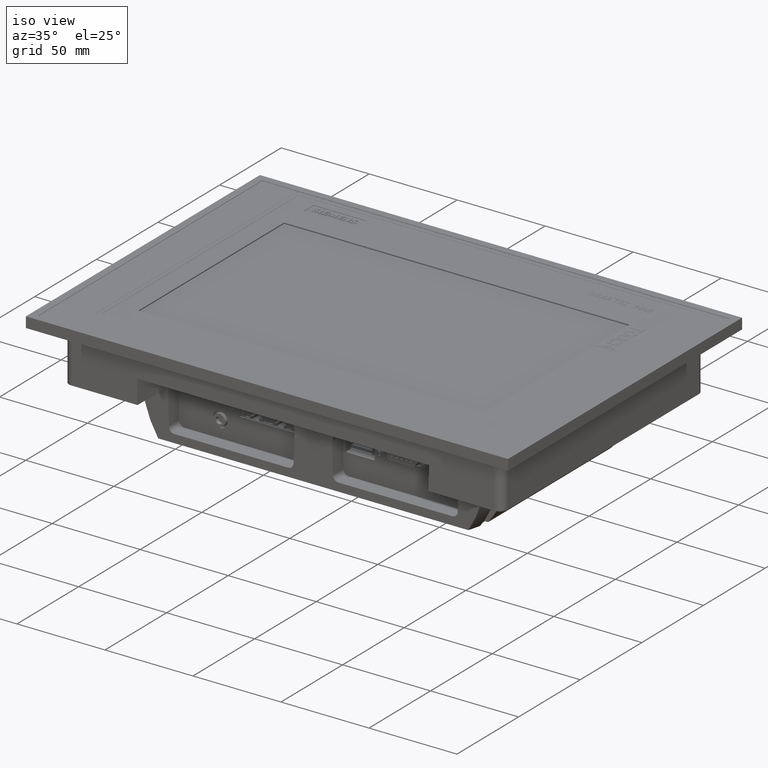
[diagram: clean part render]
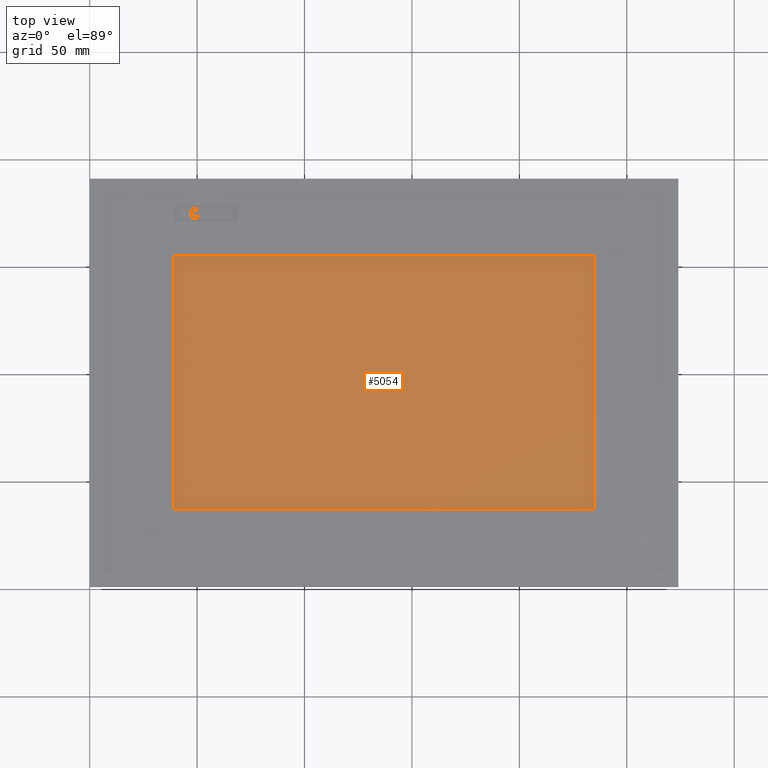
[diagram: tour spotlight — one face highlighted and labeled with its STEP entity id]
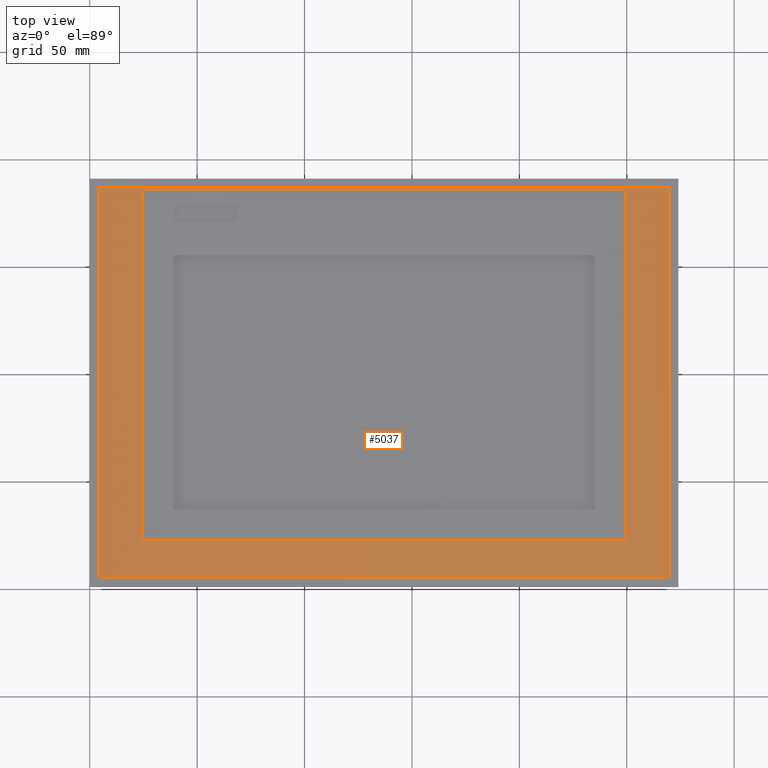
[diagram: tour spotlight — one face highlighted and labeled with its STEP entity id]
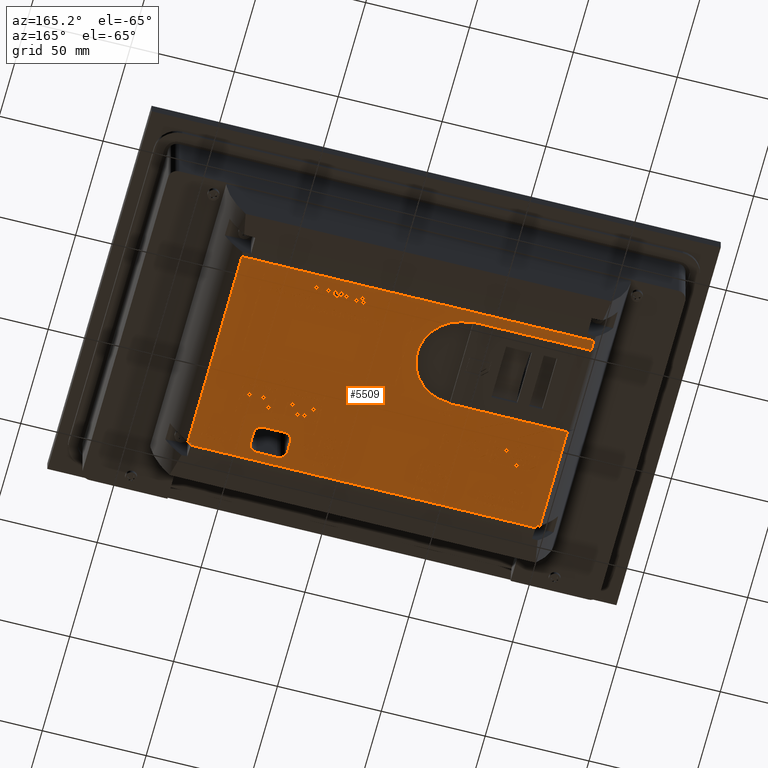
[diagram: tour spotlight — one face highlighted and labeled with its STEP entity id]
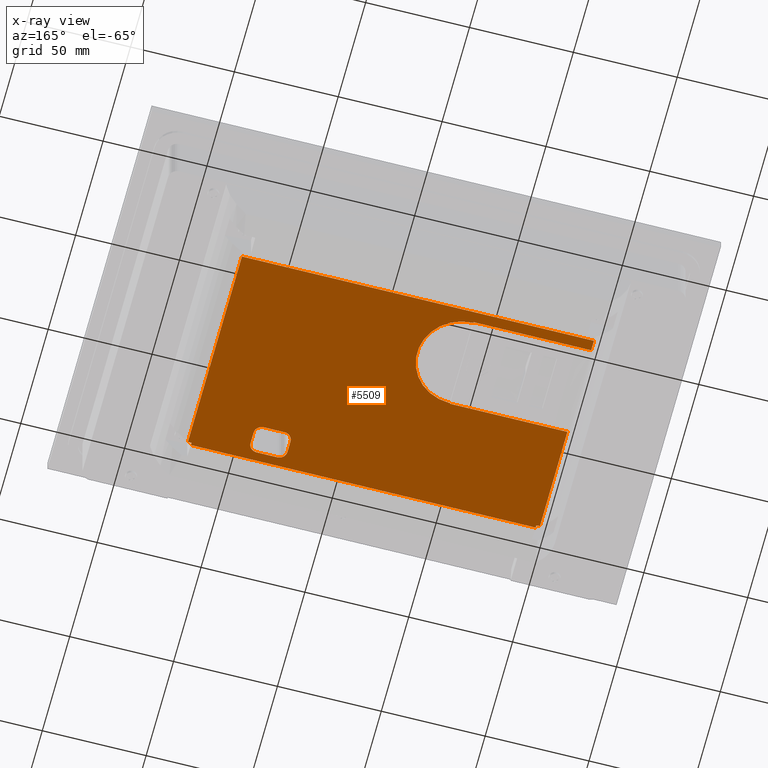
[diagram: x-ray of the same camera — body ghosted, this tour face saturated]
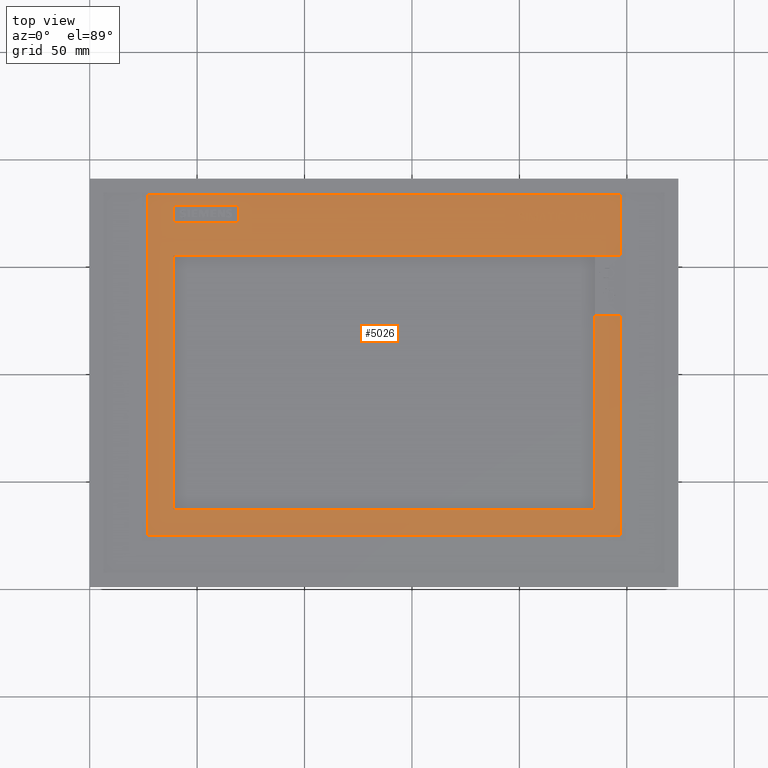
[diagram: tour spotlight — one face highlighted and labeled with its STEP entity id]
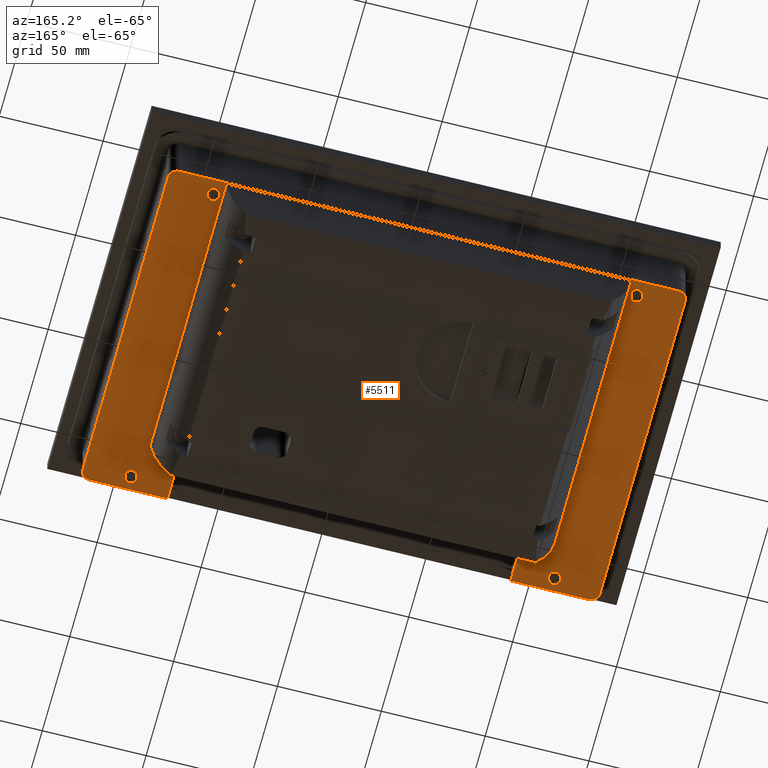
[diagram: tour spotlight — one face highlighted and labeled with its STEP entity id]
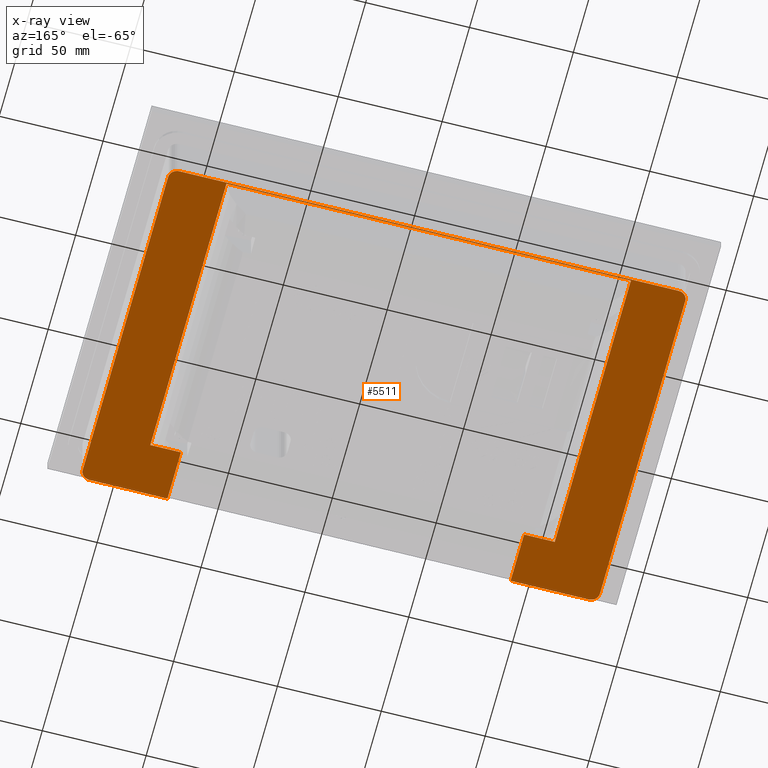
[diagram: x-ray of the same camera — body ghosted, this tour face saturated]
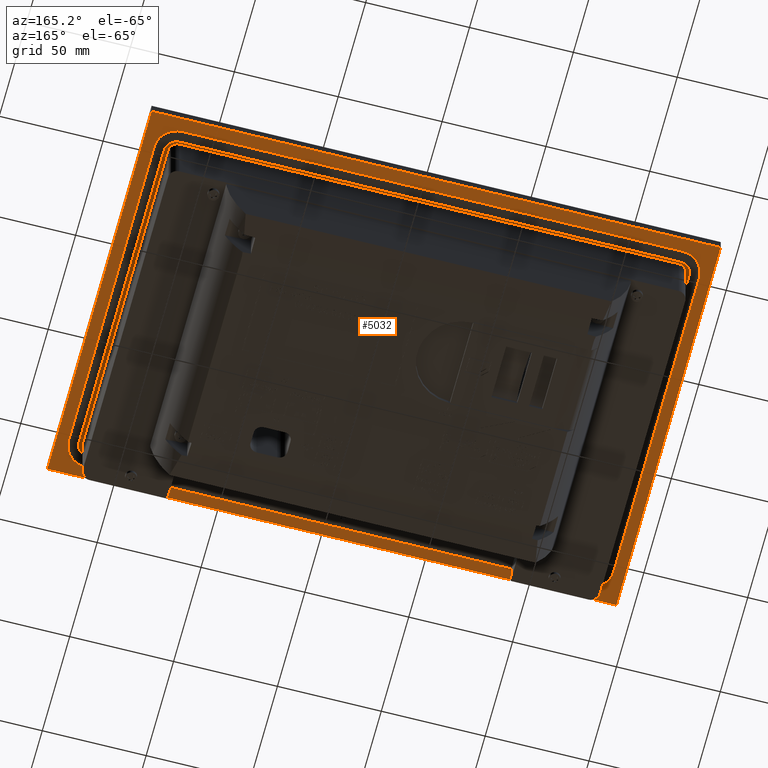
[diagram: tour spotlight — one face highlighted and labeled with its STEP entity id]
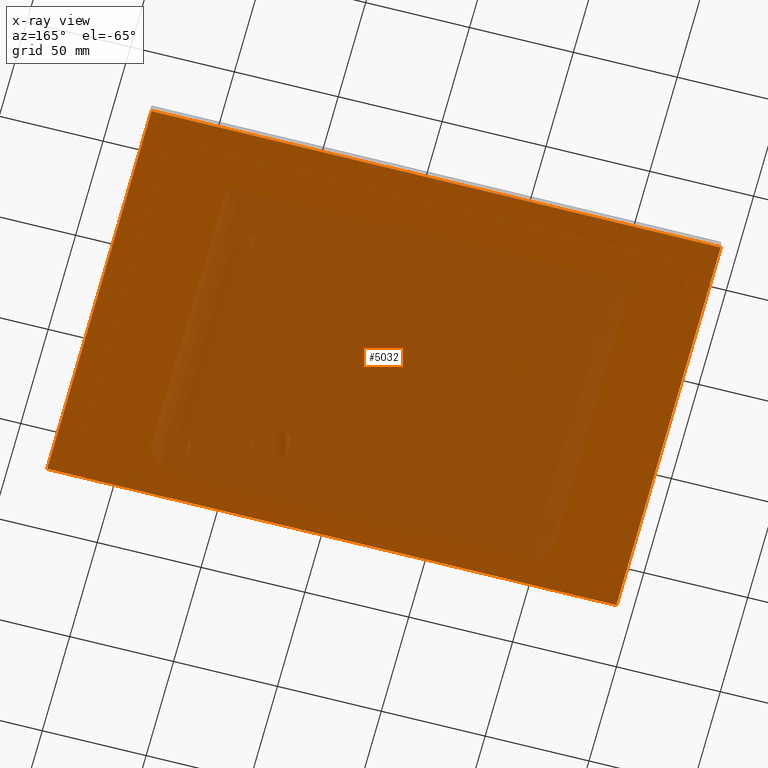
[diagram: x-ray of the same camera — body ghosted, this tour face saturated]
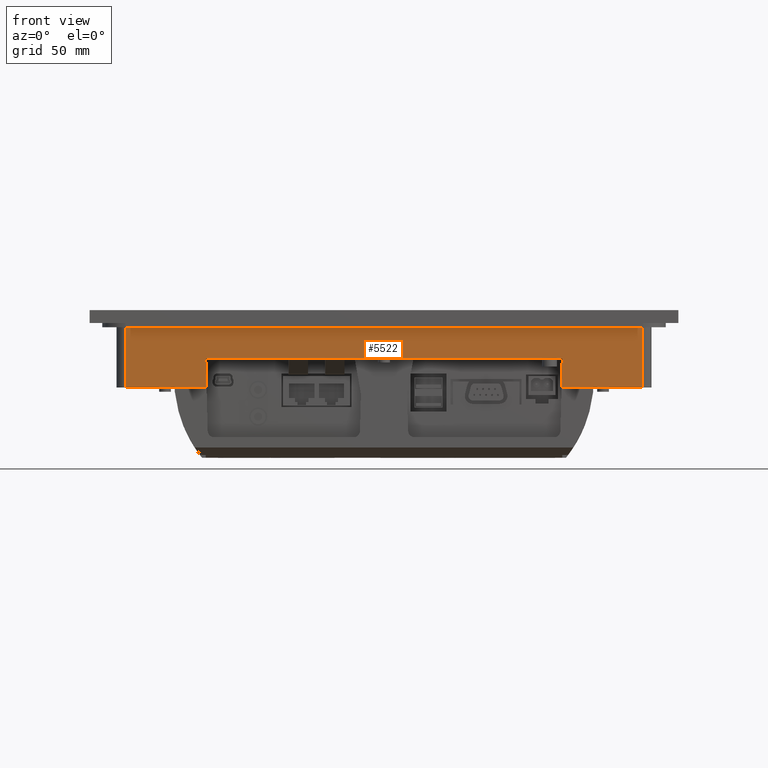
[diagram: tour spotlight — one face highlighted and labeled with its STEP entity id]
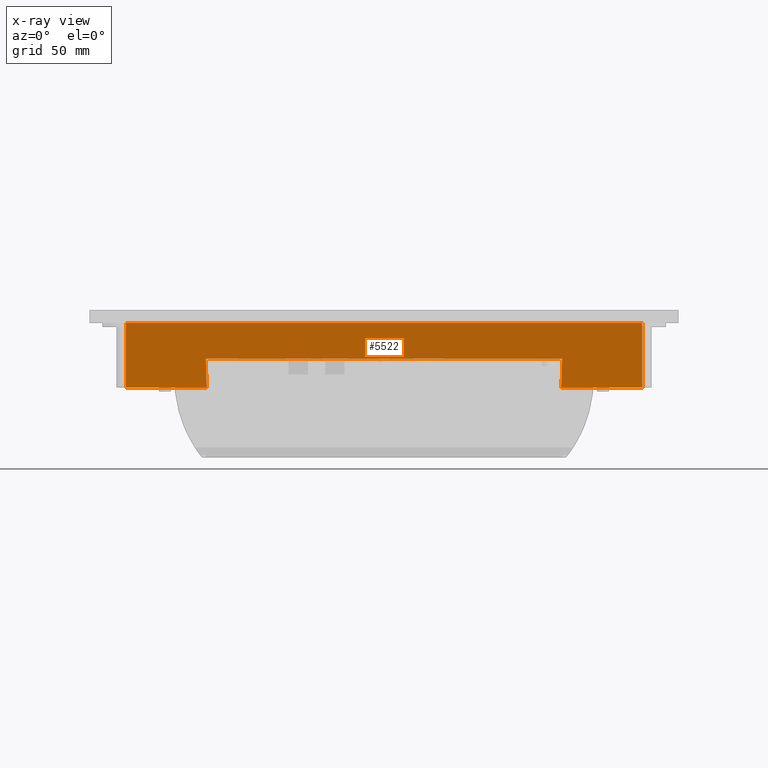
[diagram: x-ray of the same camera — body ghosted, this tour face saturated]
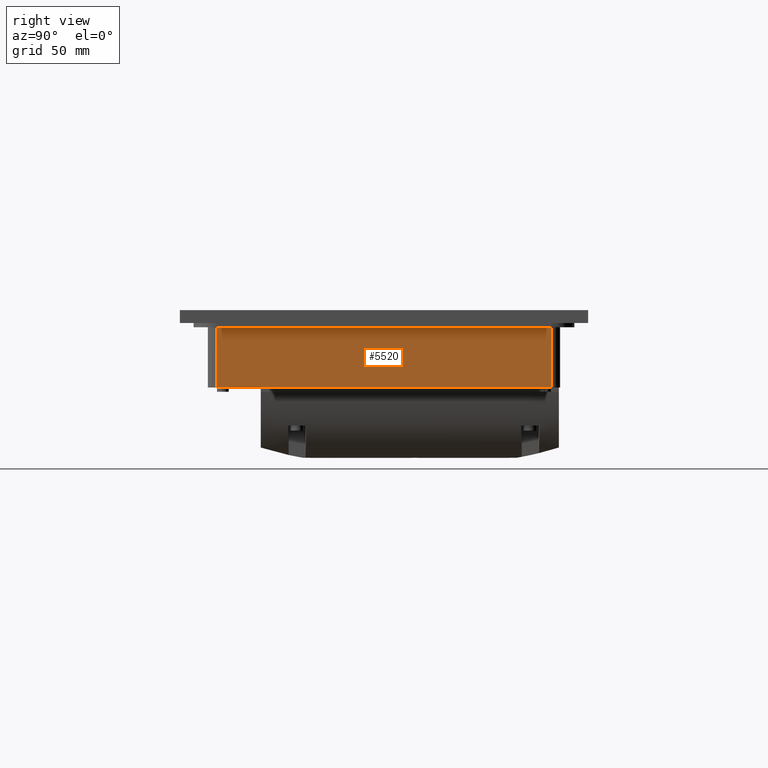
[diagram: tour spotlight — one face highlighted and labeled with its STEP entity id]
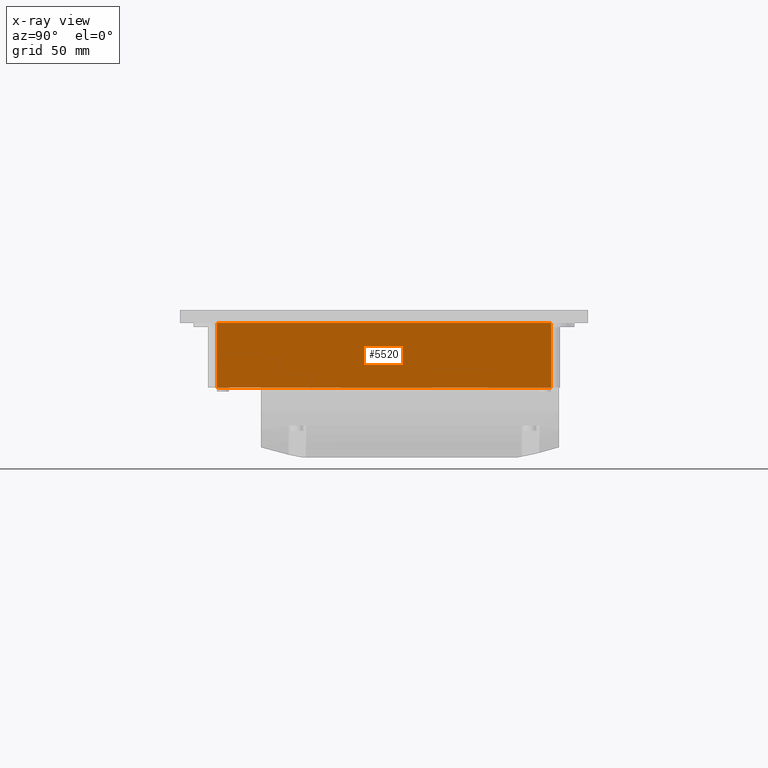
[diagram: x-ray of the same camera — body ghosted, this tour face saturated]
A machine part: a face-by-face anatomy tour. The part has 2801 B-rep faces; the first image is the clean iso view, then the 8 largest visible faces are spotlighted one at a time (largest first), each with its STEP entity span.

Face 1 — top view, entity #5054. In plain terms, the highlighted planar face has unit normal (0, -0, 1).
Definition (entity closure, byte-faithful):
#5054=ADVANCED_FACE('',(#10153),#7822,.T.);
#7822=PLANE('',#51615);
#10153=FACE_OUTER_BOUND('',#12736,.T.);
#12736=EDGE_LOOP('',(#16324,#16325,#16326,#16327));
#16324=ORIENTED_EDGE('',*,*,#33702,.T.);
#16325=ORIENTED_EDGE('',*,*,#33704,.T.);
#16326=ORIENTED_EDGE('',*,*,#33697,.T.);
#16327=ORIENTED_EDGE('',*,*,#33705,.T.);
#29141=VERTEX_POINT('',#66958);
#29142=VERTEX_POINT('',#66960);
#29143=VERTEX_POINT('',#66969);
#29144=VERTEX_POINT('',#66971);
#33697=EDGE_CURVE('',#29142,#29141,#40252,.T.);
#33702=EDGE_CURVE('',#29144,#29143,#40257,.T.);
#33704=EDGE_CURVE('',#29143,#29142,#40259,.T.);
#33705=EDGE_CURVE('',#29141,#29144,#40260,.T.);
#40252=LINE('',#66959,#45824);
#40257=LINE('',#66970,#45829);
#40259=LINE('',#66974,#45831);
#40260=LINE('',#66976,#45832);
#45824=VECTOR('',#55000,1.);
#45829=VECTOR('',#55013,1.);
#45831=VECTOR('',#55017,1.);
#45832=VECTOR('',#55020,1.);
#51615=AXIS2_PLACEMENT_3D('',#66978,#55023,#55024);
#55000=DIRECTION('',(-1.49329994060355E-005,0.999657976966521,0.0261520336533901));
#55013=DIRECTION('',(1.49329994060355E-005,-0.999657976966521,-0.0261520336533901));
#55017=DIRECTION('',(0.999999348009036,-1.49330969037826E-005,0.001141822448921));
#55020=DIRECTION('',(-0.999999348009036,1.49330969037826E-005,-0.00114182244892101));
#55023=DIRECTION('',(-0.00114182245019611,-0.0261520336533345,0.999657324975557));
#55024=DIRECTION('',(0.,-0.999657976632066,-0.0261520507013193));
#66958=CARTESIAN_POINT('',(97.5659709537513,45.7735356716602,-1.35258813325448));
#66959=CARTESIAN_POINT('',(97.567737527581,-72.4860030034792,-4.44637371445052));
#66960=CARTESIAN_POINT('',(97.5677375275811,-72.4860030034793,-4.44637371445053));
#66969=CARTESIAN_POINT('',(-98.7321344865929,-72.483071636557,-4.67051346117372));
#66970=CARTESIAN_POINT('',(-98.7339010604226,45.7764670385824,-1.57672787997767));
#66971=CARTESIAN_POINT('',(-98.7339010604226,45.7764670385824,-1.57672787997767));
#66974=CARTESIAN_POINT('',(-98.7321344865929,-72.4830716365571,-4.67051346117372));
#66976=CARTESIAN_POINT('',(97.5659709537514,45.7735356716602,-1.35258813325447));
#66978=CARTESIAN_POINT('',(-98.7321344865929,-72.4830716365571,-4.67051346117372));

Face 2 — top view, entity #5037. In plain terms, the highlighted planar face has unit normal (0, 0, -1).
Definition (entity closure, byte-faithful):
#353=FACE_BOUND('',#12717,.T.);
#354=FACE_BOUND('',#12718,.T.);
#5037=ADVANCED_FACE('',(#353,#354),#7805,.F.);
#7805=PLANE('',#51598);
#12717=EDGE_LOOP('',(#16241,#16242,#16243,#16244));
#12718=EDGE_LOOP('',(#16245,#16246,#16247,#16248));
#16241=ORIENTED_EDGE('',*,*,#33670,.F.);
#16242=ORIENTED_EDGE('',*,*,#33671,.F.);
#16243=ORIENTED_EDGE('',*,*,#33672,.F.);
#16244=ORIENTED_EDGE('',*,*,#33673,.F.);
#16245=ORIENTED_EDGE('',*,*,#33663,.F.);
#16246=ORIENTED_EDGE('',*,*,#33669,.F.);
#16247=ORIENTED_EDGE('',*,*,#33667,.F.);
#16248=ORIENTED_EDGE('',*,*,#33665,.F.);
#29121=VERTEX_POINT('',#66890);
#29122=VERTEX_POINT('',#66892);
#29123=VERTEX_POINT('',#66896);
#29124=VERTEX_POINT('',#66900);
#29125=VERTEX_POINT('',#66906);
#29126=VERTEX_POINT('',#66907);
#29127=VERTEX_POINT('',#66909);
#29128=VERTEX_POINT('',#66911);
#33663=EDGE_CURVE('',#29121,#29122,#40218,.T.);
#33665=EDGE_CURVE('',#29122,#29123,#40220,.T.);
#33667=EDGE_CURVE('',#29123,#29124,#40222,.T.);
#33669=EDGE_CURVE('',#29124,#29121,#40224,.T.);
#33670=EDGE_CURVE('',#29125,#29126,#40225,.T.);
#33671=EDGE_CURVE('',#29127,#29125,#40226,.T.);
#33672=EDGE_CURVE('',#29128,#29127,#40227,.T.);
#33673=EDGE_CURVE('',#29126,#29128,#40228,.T.);
#40218=LINE('',#66891,#45790);
#40220=LINE('',#66895,#45792);
#40222=LINE('',#66899,#45794);
#40224=LINE('',#66903,#45796);
#40225=LINE('',#66905,#45797);
#40226=LINE('',#66908,#45798);
#40227=LINE('',#66910,#45799);
#40228=LINE('',#66912,#45800);
#45790=VECTOR('',#54938,1.);
#45792=VECTOR('',#54942,1.);
#45794=VECTOR('',#54946,1.);
#45796=VECTOR('',#54950,1.);
#45797=VECTOR('',#54953,1.);
#45798=VECTOR('',#54954,1.);
#45799=VECTOR('',#54955,1.);
#45800=VECTOR('',#54956,1.);
#51598=AXIS2_PLACEMENT_3D('',#66913,#54957,#54958);
#54938=DIRECTION('',(-1.49329994056586E-005,0.999657976966521,0.0261520336533901));
#54942=DIRECTION('',(0.999999348009036,-1.49330969038063E-005,0.00114182244892103));
#54946=DIRECTION('',(1.49329994056586E-005,-0.999657976966521,-0.0261520336533901));
#54950=DIRECTION('',(-0.999999348009036,1.4933096903754E-005,-0.00114182244892103));
#54953=DIRECTION('',(0.999999348009036,-1.49330969039583E-005,0.00114182244892104));
#54954=DIRECTION('',(1.49329994019804E-005,-0.999657976966521,-0.0261520336533901));
#54955=DIRECTION('',(-0.999999348009036,1.49330969031562E-005,-0.00114182244892104));
#54956=DIRECTION('',(-1.49329994023196E-005,0.999657976966521,0.0261520336533901));
#54957=DIRECTION('',(0.00114182245019613,0.0261520336533344,-0.999657324975557));
#54958=DIRECTION('',(0.,0.999657976632066,0.0261520507013193));
#66890=CARTESIAN_POINT('',(-133.282537154797,-104.042294217771,-4.75032908844259));
#66891=CARTESIAN_POINT('',(-133.282537154797,-104.042294217771,-4.75032908844259));
#66892=CARTESIAN_POINT('',(-133.285246000889,77.2956628039563,-0.00635018371761801));
#66895=CARTESIAN_POINT('',(-133.285246000889,77.2956628039563,-0.00635018371761726));
#66896=CARTESIAN_POINT('',(132.114580960709,77.291699560038,0.296689494226024));
#66899=CARTESIAN_POINT('',(132.114580960709,77.291699560038,0.296689494226023));
#66900=CARTESIAN_POINT('',(132.117289806801,-104.046257461689,-4.44728941049894));
#66903=CARTESIAN_POINT('',(132.117289806801,-104.046257461689,-4.44728941049894));
#66905=CARTESIAN_POINT('',(-113.042807796005,-86.8084929407492,-4.27635754189198));
#66906=CARTESIAN_POINT('',(-113.042807796005,-86.8084929407492,-4.27635754189198));
#66907=CARTESIAN_POINT('',(111.877045558188,-86.8118516929049,-4.01953883668066));
#66908=CARTESIAN_POINT('',(-113.045251730687,76.7955315695918,0.00368428582185132));
#66909=CARTESIAN_POINT('',(-113.045251730687,76.7955315695918,0.00368428582185132));
#66910=CARTESIAN_POINT('',(111.874601623506,76.7921728174363,0.260502991033173));
#66911=CARTESIAN_POINT('',(111.874601623506,76.7921728174363,0.260502991033173));
#66912=CARTESIAN_POINT('',(111.877045558188,-86.8118516929049,-4.01953883668067));
#66913=CARTESIAN_POINT('',(-133.285246000889,77.2956628039563,-0.00635018371761728));

Face 3 — auxiliary view, entity #5509. An x-ray twin of the same camera follows (body ghosted, this face saturated) — the face is partly hidden behind the body. In plain terms, the highlighted planar face has unit normal (-0, -0, 1).
Definition (entity closure, byte-faithful):
#468=FACE_BOUND('',#13260,.T.);
#469=FACE_BOUND('',#13261,.T.);
#1237=CIRCLE('',#52371,3.889035815114);
#1238=CIRCLE('',#52372,3.889035815114);
#1239=CIRCLE('',#52373,3.889035815114);
#1240=CIRCLE('',#52374,3.889035815114);
#1241=CIRCLE('',#52375,21.28067767034);
#5509=ADVANCED_FACE('',(#468,#469),#8131,.F.);
#8131=PLANE('',#52376);
#13260=EDGE_LOOP('',(#18627,#18628,#18629,#18630,#18631,#18632,#18633,#18634));
#13261=EDGE_LOOP('',(#18635,#18636,#18637,#18638,#18639,#18640,#18641,#18642,
#18643,#18644,#18645,#18646,#18647,#18648,#18649,#18650));
#18627=ORIENTED_EDGE('',*,*,#34914,.F.);
#18628=ORIENTED_EDGE('',*,*,#34915,.F.);
#18629=ORIENTED_EDGE('',*,*,#34916,.F.);
#18630=ORIENTED_EDGE('',*,*,#34917,.F.);
#18631=ORIENTED_EDGE('',*,*,#34918,.F.);
#18632=ORIENTED_EDGE('',*,*,#34919,.F.);
#18633=ORIENTED_EDGE('',*,*,#34920,.F.);
#18634=ORIENTED_EDGE('',*,*,#34921,.F.);
#18635=ORIENTED_EDGE('',*,*,#34922,.F.);
#18636=ORIENTED_EDGE('',*,*,#34923,.F.);
#18637=ORIENTED_EDGE('',*,*,#34924,.F.);
#18638=ORIENTED_EDGE('',*,*,#34925,.T.);
#18639=ORIENTED_EDGE('',*,*,#34926,.T.);
#18640=ORIENTED_EDGE('',*,*,#34927,.T.);
#18641=ORIENTED_EDGE('',*,*,#34928,.T.);
#18642=ORIENTED_EDGE('',*,*,#34929,.T.);
#18643=ORIENTED_EDGE('',*,*,#34930,.T.);
#18644=ORIENTED_EDGE('',*,*,#34931,.T.);
#18645=ORIENTED_EDGE('',*,*,#34932,.F.);
#18646=ORIENTED_EDGE('',*,*,#34933,.F.);
#18647=ORIENTED_EDGE('',*,*,#34934,.T.);
#18648=ORIENTED_EDGE('',*,*,#34935,.F.);
#18649=ORIENTED_EDGE('',*,*,#34936,.F.);
#18650=ORIENTED_EDGE('',*,*,#34937,.T.);
#29996=VERTEX_POINT('',#69809);
#29997=VERTEX_POINT('',#69810);
#29998=VERTEX_POINT('',#69812);
#29999=VERTEX_POINT('',#69814);
#30000=VERTEX_POINT('',#69816);
#30001=VERTEX_POINT('',#69818);
#30002=VERTEX_POINT('',#69820);
#30003=VERTEX_POINT('',#69822);
#30004=VERTEX_POINT('',#69825);
#30005=VERTEX_POINT('',#69826);
#30006=VERTEX_POINT('',#69828);
#30007=VERTEX_POINT('',#69830);
#30008=VERTEX_POINT('',#69832);
#30009=VERTEX_POINT('',#69834);
#30010=VERTEX_POINT('',#69836);
#30011=VERTEX_POINT('',#69838);
#30012=VERTEX_POINT('',#69840);
#30013=VERTEX_POINT('',#69842);
#30014=VERTEX_POINT('',#69844);
#30015=VERTEX_POINT('',#69846);
#30016=VERTEX_POINT('',#69848);
#30017=VERTEX_POINT('',#69850);
#30018=VERTEX_POINT('',#69852);
#30019=VERTEX_POINT('',#69854);
#34914=EDGE_CURVE('',#29996,#29997,#1237,.T.);
#34915=EDGE_CURVE('',#29998,#29996,#41156,.T.);
#34916=EDGE_CURVE('',#29999,#29998,#1238,.T.);
#34917=EDGE_CURVE('',#30000,#29999,#41157,.T.);
#34918=EDGE_CURVE('',#30001,#30000,#1239,.T.);
#34919=EDGE_CURVE('',#30002,#30001,#41158,.T.);
#34920=EDGE_CURVE('',#30003,#30002,#1240,.T.);
#34921=EDGE_CURVE('',#29997,#30003,#41159,.T.);
#34922=EDGE_CURVE('',#30004,#30005,#41160,.T.);
#34923=EDGE_CURVE('',#30006,#30004,#41161,.T.);
#34924=EDGE_CURVE('',#30007,#30006,#41162,.T.);
#34925=EDGE_CURVE('',#30007,#30008,#41163,.T.);
#34926=EDGE_CURVE('',#30008,#30009,#41164,.T.);
#34927=EDGE_CURVE('',#30009,#30010,#41165,.T.);
#34928=EDGE_CURVE('',#30010,#30011,#1241,.T.);
#34929=EDGE_CURVE('',#30011,#30012,#41166,.T.);
#34930=EDGE_CURVE('',#30012,#30013,#41167,.T.);
#34931=EDGE_CURVE('',#30013,#30014,#41168,.T.);
#34932=EDGE_CURVE('',#30015,#30014,#41169,.T.);
#34933=EDGE_CURVE('',#30016,#30015,#41170,.T.);
#34934=EDGE_CURVE('',#30016,#30017,#41171,.T.);
#34935=EDGE_CURVE('',#30018,#30017,#41172,.T.);
#34936=EDGE_CURVE('',#30019,#30018,#41173,.T.);
#34937=EDGE_CURVE('',#30019,#30005,#41174,.T.);
#41156=LINE('',#69811,#46732);
#41157=LINE('',#69815,#46733);
#41158=LINE('',#69819,#46734);
#41159=LINE('',#69823,#46735);
#41160=LINE('',#69824,#46736);
#41161=LINE('',#69827,#46737);
#41162=LINE('',#69829,#46738);
#41163=LINE('',#69831,#46739);
#41164=LINE('',#69833,#46740);
#41165=LINE('',#69835,#46741);
#41166=LINE('',#69839,#46742);
#41167=LINE('',#69841,#46743);
#41168=LINE('',#69843,#46744);
#41169=LINE('',#69845,#46745);
#41170=LINE('',#69847,#46746);
#41171=LINE('',#69849,#46747);
#41172=LINE('',#69851,#46748);
#41173=LINE('',#69853,#46749);
#41174=LINE('',#69855,#46750);
#46732=VECTOR('',#57436,1.);
#46733=VECTOR('',#57439,1.);
#46734=VECTOR('',#57442,1.);
#46735=VECTOR('',#57445,1.);
#46736=VECTOR('',#57446,1.);
#46737=VECTOR('',#57447,1.);
#46738=VECTOR('',#57448,1.);
#46739=VECTOR('',#57449,1.);
#46740=VECTOR('',#57450,1.);
#46741=VECTOR('',#57451,1.);
#46742=VECTOR('',#57454,1.);
#46743=VECTOR('',#57455,1.);
#46744=VECTOR('',#57456,1.);
#46745=VECTOR('',#57457,1.);
#46746=VECTOR('',#57458,1.);
#46747=VECTOR('',#57459,1.);
#46748=VECTOR('',#57460,1.);
#46749=VECTOR('',#57461,1.);
#46750=VECTOR('',#57462,1.);
#52371=AXIS2_PLACEMENT_3D('',#69808,#57434,#57435);
#52372=AXIS2_PLACEMENT_3D('',#69813,#57437,#57438);
#52373=AXIS2_PLACEMENT_3D('',#69817,#57440,#57441);
#52374=AXIS2_PLACEMENT_3D('',#69821,#57443,#57444);
#52375=AXIS2_PLACEMENT_3D('',#69837,#57452,#57453);
#52376=AXIS2_PLACEMENT_3D('',#69856,#57463,#57464);
#57434=DIRECTION('',(0.00114182245019613,0.0261520336533344,-0.999657324975557));
#57435=DIRECTION('',(-1.49329994069929E-005,0.999657976966521,0.026152033653389));
#57436=DIRECTION('',(-1.49329994052079E-005,0.999657976966521,0.0261520336533896));
#57437=DIRECTION('',(0.00114182245019613,0.0261520336533344,-0.999657324975557));
#57438=DIRECTION('',(-0.999999348009037,1.49330969038884E-005,-0.00114182244892031));
#57439=DIRECTION('',(-0.999999348009036,1.49330969041739E-005,-0.00114182244892042));
#57440=DIRECTION('',(0.00114182245019613,0.0261520336533344,-0.999657324975557));
#57441=DIRECTION('',(1.49329994052087E-005,-0.999657976966521,-0.026152033653389));
#57442=DIRECTION('',(1.49329994064695E-005,-0.999657976966521,-0.0261520336533896));
#57443=DIRECTION('',(0.00114182245019613,0.0261520336533345,-0.999657324975557));
#57444=DIRECTION('',(0.999999348009037,-1.49330969038884E-005,0.00114182244892031));
#57445=DIRECTION('',(0.999999348009036,-1.49330969041739E-005,0.0011418224489218));
#57446=DIRECTION('',(1.49329994050851E-005,-0.999657976966521,-0.02615203365339));
#57447=DIRECTION('',(0.999048221577171,-0.0436193874726904,-8.97500607902378E-013));
#57448=DIRECTION('',(1.49329994054606E-005,-0.999657976966521,-0.0261520336533901));
#57449=DIRECTION('',(0.999999348009036,-1.49330481630895E-005,0.00114182245019631));
#57450=DIRECTION('',(-1.4932999439644E-005,0.999657976966521,0.026152033653396));
#57451=DIRECTION('',(0.999999348009036,-1.49330969013329E-005,0.00114182244890461));
#57452=DIRECTION('',(-0.00114182245019613,-0.0261520336533344,0.999657324975557));
#57453=DIRECTION('',(0.0239704774491767,-0.9993714571403,-0.0261171756538269));
#57454=DIRECTION('',(-0.999999348009036,1.49330968915606E-005,-0.00114182244892439));
#57455=DIRECTION('',(-1.49329994205633E-005,0.99965797696652,0.0261520336534058));
#57456=DIRECTION('',(-0.999999348009036,1.49330481637131E-005,-0.00114182245019612));
#57457=DIRECTION('',(1.49329994054606E-005,-0.999657976966521,-0.0261520336533901));
#57458=DIRECTION('',(-0.999999348009036,1.49330969037705E-005,-0.00114182244892103));
#57459=DIRECTION('',(1.49329994054606E-005,-0.999657976966521,-0.0261520336533901));
#57460=DIRECTION('',(0.999046918840597,0.0435895497048914,0.00228147137480659));
#57461=DIRECTION('',(-1.49329994068829E-005,0.999657976966521,0.0261520336533895));
#57462=DIRECTION('',(-0.999999348009036,1.49330969037705E-005,-0.00114182244892103));
#57463=DIRECTION('',(-0.00114182245019628,-0.0261520336533344,0.999657324975557));
#57464=DIRECTION('',(0.,-0.999657976632066,-0.0261520507013192));
#69808=CARTESIAN_POINT('',(41.9945711564142,-35.8262236216696,-71.2890059199496));
#69809=CARTESIAN_POINT('',(38.1055378769001,-35.8261655463208,-71.2934465083479));
#69810=CARTESIAN_POINT('',(41.9945130814447,-31.9385179463824,-71.1872997244335));
#69811=CARTESIAN_POINT('',(38.1056200083968,-41.3242844196366,-71.4372826934415));
#69812=CARTESIAN_POINT('',(38.1056200083968,-41.3242844196366,-71.4372826934415));
#69813=CARTESIAN_POINT('',(41.9946532879107,-41.3243424949856,-71.4328421050432));
#69814=CARTESIAN_POINT('',(41.9947113628801,-45.2120481702728,-71.5345483005593));
#69815=CARTESIAN_POINT('',(51.9947048429705,-45.2121975012575,-71.5231300760705));
#69816=CARTESIAN_POINT('',(51.9947048429707,-45.2121975012417,-71.5231300760701));
#69817=CARTESIAN_POINT('',(51.9946467680012,-41.3244918259545,-71.421423880554));
#69818=CARTESIAN_POINT('',(55.8836800475148,-41.3245499013031,-71.4169832921556));
#69819=CARTESIAN_POINT('',(55.883597916018,-35.8264310279872,-71.2731471070619));
#69820=CARTESIAN_POINT('',(55.883597916002,-35.8264310279872,-71.273147107062));
#69821=CARTESIAN_POINT('',(51.9945646365042,-35.8263729526385,-71.2775876954604));
#69822=CARTESIAN_POINT('',(51.9945065615347,-31.9386672773353,-71.1758814999438));
#69823=CARTESIAN_POINT('',(41.9945130814444,-31.9385179463663,-71.187299724433));
#69824=CARTESIAN_POINT('',(-83.4924115019785,-48.2287330160036,-71.7568009186853));
#69825=CARTESIAN_POINT('',(-83.4924115019785,-48.2287330160036,-71.7568009186853));
#69826=CARTESIAN_POINT('',(-83.4923936865899,-49.4213464244279,-71.788000855775));
#69827=CARTESIAN_POINT('',(-97.8744889606242,-47.6007979516275,-71.7568009186724));
#69828=CARTESIAN_POINT('',(-85.2393143703132,-48.1524615894145,-71.7568009186837));
#69829=CARTESIAN_POINT('',(-85.2412435882318,80.9949054016545,-68.3781790637279));
#69830=CARTESIAN_POINT('',(-85.2400619129379,1.89019411980638,-70.4476359378931));
#69831=CARTESIAN_POINT('',(-97.8752282676598,1.89038280147711,-70.4620630639053));
#69832=CARTESIAN_POINT('',(-28.6627573865074,1.88934924764209,-70.3830346592938));
#69833=CARTESIAN_POINT('',(-28.6627573865074,1.88934924764209,-70.3830346592938));
#69834=CARTESIAN_POINT('',(-28.6627625833103,2.23723819719843,-70.373933542986));
#69835=CARTESIAN_POINT('',(-28.6627625833103,2.23723819719843,-70.373933542986));
#69836=CARTESIAN_POINT('',(-27.996161127353,2.23722824276781,-70.3731724019828));
#69837=CARTESIAN_POINT('',(-28.506269151738,23.5045300946253,-69.8173812052698));
#69838=CARTESIAN_POINT('',(-27.9967965136542,44.7718167209761,-69.2604258277088));
#69839=CARTESIAN_POINT('',(-27.9967965136542,44.7718167209761,-69.2604258277088));
#69840=CARTESIAN_POINT('',(-28.6633979696121,44.7718266754067,-69.261186968712));
#69841=CARTESIAN_POINT('',(-28.6633979696121,44.7718266754067,-69.261186968712));
#69842=CARTESIAN_POINT('',(-28.6634040152483,45.1765389662464,-69.2505992980347));
#69843=CARTESIAN_POINT('',(-28.6634040152481,45.1765389662464,-69.2505992980347));
#69844=CARTESIAN_POINT('',(-85.2407085416782,45.1773838384107,-69.315200576634));
#69845=CARTESIAN_POINT('',(-85.2412435882318,80.9949054016545,-68.3781790637279));
#69846=CARTESIAN_POINT('',(-85.2407842851939,50.2478764301371,-69.1825515147683));
#69847=CARTESIAN_POINT('',(105.093244259914,50.2450341517916,-68.9652237064861));
#69848=CARTESIAN_POINT('',(84.2274097021357,50.2453457435242,-68.9890488003334));
#69849=CARTESIAN_POINT('',(84.2269503996784,80.9923747150605,-68.1846763500225));
#69850=CARTESIAN_POINT('',(84.2288796171232,-48.1549923110951,-71.5632982051662));
#69851=CARTESIAN_POINT('',(82.4819798300876,-48.2312115292924,-71.5672875091554));
#69852=CARTESIAN_POINT('',(82.4819798300876,-48.2312115292924,-71.5672875091554));
#69853=CARTESIAN_POINT('',(82.4820945565188,-55.9113291655127,-71.7682069231073));
#69854=CARTESIAN_POINT('',(82.4819976454762,-49.4238249377124,-71.598487446245));
#69855=CARTESIAN_POINT('',(105.094733129197,-49.4241626157117,-71.5726677004607));
#69856=CARTESIAN_POINT('',(-97.8741699925155,-68.9536024610197,-72.3154112383951));

Face 4 — top view, entity #5026. In plain terms, the highlighted planar face has unit normal (0, -0, 1).
Definition (entity closure, byte-faithful):
#349=FACE_BOUND('',#12704,.T.);
#350=FACE_BOUND('',#12705,.T.);
#5026=ADVANCED_FACE('',(#349,#350),#7794,.T.);
#7794=PLANE('',#51587);
#12704=EDGE_LOOP('',(#16182,#16183,#16184,#16185,#16186,#16187,#16188,#16189,
#16190,#16191,#16192));
#12705=EDGE_LOOP('',(#16193,#16194,#16195,#16196));
#16182=ORIENTED_EDGE('',*,*,#33631,.F.);
#16183=ORIENTED_EDGE('',*,*,#33632,.F.);
#16184=ORIENTED_EDGE('',*,*,#33633,.F.);
#16185=ORIENTED_EDGE('',*,*,#33634,.F.);
#16186=ORIENTED_EDGE('',*,*,#33635,.T.);
#16187=ORIENTED_EDGE('',*,*,#33636,.T.);
#16188=ORIENTED_EDGE('',*,*,#33637,.T.);
#16189=ORIENTED_EDGE('',*,*,#33638,.T.);
#16190=ORIENTED_EDGE('',*,*,#33639,.T.);
#16191=ORIENTED_EDGE('',*,*,#33640,.T.);
#16192=ORIENTED_EDGE('',*,*,#33641,.T.);
#16193=ORIENTED_EDGE('',*,*,#33642,.T.);
#16194=ORIENTED_EDGE('',*,*,#33643,.T.);
#16195=ORIENTED_EDGE('',*,*,#33644,.T.);
#16196=ORIENTED_EDGE('',*,*,#33645,.T.);
#29094=VERTEX_POINT('',#66825);
#29095=VERTEX_POINT('',#66826);
#29096=VERTEX_POINT('',#66828);
#29097=VERTEX_POINT('',#66830);
#29098=VERTEX_POINT('',#66832);
#29099=VERTEX_POINT('',#66834);
#29100=VERTEX_POINT('',#66836);
#29101=VERTEX_POINT('',#66838);
#29102=VERTEX_POINT('',#66840);
#29103=VERTEX_POINT('',#66842);
#29104=VERTEX_POINT('',#66844);
#29105=VERTEX_POINT('',#66847);
#29106=VERTEX_POINT('',#66848);
#29107=VERTEX_POINT('',#66850);
#29108=VERTEX_POINT('',#66852);
#33631=EDGE_CURVE('',#29094,#29095,#40186,.T.);
#33632=EDGE_CURVE('',#29096,#29094,#40187,.T.);
#33633=EDGE_CURVE('',#29097,#29096,#40188,.T.);
#33634=EDGE_CURVE('',#29098,#29097,#40189,.T.);
#33635=EDGE_CURVE('',#29098,#29099,#40190,.T.);
#33636=EDGE_CURVE('',#29099,#29100,#40191,.T.);
#33637=EDGE_CURVE('',#29100,#29101,#40192,.T.);
#33638=EDGE_CURVE('',#29101,#29102,#40193,.T.);
#33639=EDGE_CURVE('',#29102,#29103,#40194,.T.);
#33640=EDGE_CURVE('',#29103,#29104,#40195,.T.);
#33641=EDGE_CURVE('',#29104,#29095,#40196,.T.);
#33642=EDGE_CURVE('',#29105,#29106,#40197,.T.);
#33643=EDGE_CURVE('',#29106,#29107,#40198,.T.);
#33644=EDGE_CURVE('',#29107,#29108,#40199,.T.);
#33645=EDGE_CURVE('',#29108,#29105,#40200,.T.);
#40186=LINE('',#66824,#45758);
#40187=LINE('',#66827,#45759);
#40188=LINE('',#66829,#45760);
#40189=LINE('',#66831,#45761);
#40190=LINE('',#66833,#45762);
#40191=LINE('',#66835,#45763);
#40192=LINE('',#66837,#45764);
#40193=LINE('',#66839,#45765);
#40194=LINE('',#66841,#45766);
#40195=LINE('',#66843,#45767);
#40196=LINE('',#66845,#45768);
#40197=LINE('',#66846,#45769);
#40198=LINE('',#66849,#45770);
#40199=LINE('',#66851,#45771);
#40200=LINE('',#66853,#45772);
#45758=VECTOR('',#54892,1.);
#45759=VECTOR('',#54893,1.);
#45760=VECTOR('',#54894,1.);
#45761=VECTOR('',#54895,1.);
#45762=VECTOR('',#54896,1.);
#45763=VECTOR('',#54897,1.);
#45764=VECTOR('',#54898,1.);
#45765=VECTOR('',#54899,1.);
#45766=VECTOR('',#54900,1.);
#45767=VECTOR('',#54901,1.);
#45768=VECTOR('',#54902,1.);
#45769=VECTOR('',#54903,1.);
#45770=VECTOR('',#54904,1.);
#45771=VECTOR('',#54905,1.);
#45772=VECTOR('',#54906,1.);
#51587=AXIS2_PLACEMENT_3D('',#66854,#54907,#54908);
#54892=DIRECTION('',(-1.49329994060355E-005,0.999657976966521,0.0261520336533901));
#54893=DIRECTION('',(0.999999348009036,-1.49330969037826E-005,0.001141822448921));
#54894=DIRECTION('',(1.49329994060355E-005,-0.999657976966521,-0.0261520336533901));
#54895=DIRECTION('',(-0.999999348009036,1.49330969037826E-005,-0.00114182244892101));
#54896=DIRECTION('',(0.999999348009036,-1.493309690317E-005,0.00114182244892106));
#54897=DIRECTION('',(-1.49329994069798E-005,0.999657976966521,0.0261520336533901));
#54898=DIRECTION('',(-0.999999348009036,1.49330969036536E-005,-0.00114182244892103));
#54899=DIRECTION('',(1.49329994021013E-005,-0.999657976966521,-0.0261520336533901));
#54900=DIRECTION('',(0.999999348009036,-1.49330969042215E-005,0.001141822448921));
#54901=DIRECTION('',(-1.49329994067703E-005,0.999657976966521,0.0261520336533901));
#54902=DIRECTION('',(-0.999999348009036,1.49330969037575E-005,-0.00114182244892101));
#54903=DIRECTION('',(-0.999999114094417,-0.000654048627801598,-0.00115932341155282));
#54904=DIRECTION('',(-1.30335150047548E-006,0.999657976670136,0.0261520492136092));
#54905=DIRECTION('',(0.999999114094417,0.000654048627801599,0.0011593234115528));
#54906=DIRECTION('',(1.30335150733127E-006,-0.999657976670136,-0.0261520492136091));
#54907=DIRECTION('',(-0.00114182245019611,-0.0261520336533345,0.999657324975557));
#54908=DIRECTION('',(0.,-0.999657976632066,-0.0261520507013193));
#66824=CARTESIAN_POINT('',(97.5669839247639,-72.5032633456904,-3.78659987996666));
#66825=CARTESIAN_POINT('',(97.5669839247639,-72.5032633456905,-3.78659987996666));
#66826=CARTESIAN_POINT('',(97.5656308456877,18.075745947246,-1.41696411063298));
#66827=CARTESIAN_POINT('',(-98.73288808941,-72.5003319787683,-4.01073962668985));
#66828=CARTESIAN_POINT('',(-98.73288808941,-72.5003319787682,-4.01073962668985));
#66829=CARTESIAN_POINT('',(-98.7346546632397,45.7592066963712,-0.916954045493801));
#66830=CARTESIAN_POINT('',(-98.7346546632397,45.7592066963712,-0.916954045493801));
#66831=CARTESIAN_POINT('',(97.5652173509342,45.756275329449,-0.692814298770607));
#66832=CARTESIAN_POINT('',(97.5652173509342,45.756275329449,-0.692814298770601));
#66833=CARTESIAN_POINT('',(97.5652173509342,45.756275329449,-0.692814298770601));
#66834=CARTESIAN_POINT('',(109.375209650921,45.7560989695746,-0.679329375648843));
#66835=CARTESIAN_POINT('',(109.375209650921,45.7560989695746,-0.679329375648844));
#66836=CARTESIAN_POINT('',(109.374783313788,74.296334211969,0.0673111851554497));
#66837=CARTESIAN_POINT('',(109.374783313788,74.296334211969,0.067311185155451));
#66838=CARTESIAN_POINT('',(-110.54507330036,74.29961829864,-0.183798407811263));
#66839=CARTESIAN_POINT('',(-110.54507330036,74.29961829864,-0.183798407811263));
#66840=CARTESIAN_POINT('',(-110.542704030675,-84.3061163268686,-4.33308006725815));
#66841=CARTESIAN_POINT('',(-110.542704030675,-84.3061163268686,-4.33308006725815));
#66842=CARTESIAN_POINT('',(109.377152583474,-84.3094004135398,-4.08197047429145));
#66843=CARTESIAN_POINT('',(109.377152583474,-84.3094004135398,-4.08197047429144));
#66844=CARTESIAN_POINT('',(109.375623145674,18.0755695873716,-1.40347918751122));
#66845=CARTESIAN_POINT('',(109.375623145674,18.0755695873716,-1.40347918751122));
#66846=CARTESIAN_POINT('',(-68.2503961209198,61.2431594073544,-0.47705884122845));
#66847=CARTESIAN_POINT('',(-68.2503961209198,61.2431594073544,-0.47705884122845));
#66848=CARTESIAN_POINT('',(-98.5433988965128,61.2233462929045,-0.512178259664919));
#66849=CARTESIAN_POINT('',(-98.5433988965128,61.2233462929045,-0.512178259664919));
#66850=CARTESIAN_POINT('',(-98.5434094497271,69.3175594769208,-0.300425573772345));
#66851=CARTESIAN_POINT('',(-98.5434094497271,69.3175594769208,-0.300425573772345));
#66852=CARTESIAN_POINT('',(-68.2504066741342,69.3373725913707,-0.265306155335877));
#66853=CARTESIAN_POINT('',(-68.2504066741342,69.3373725913707,-0.265306155335877));
#66854=CARTESIAN_POINT('',(-110.542704030675,-84.3061163268686,-4.33308006725815));

Face 5 — auxiliary view, entity #5511. An x-ray twin of the same camera follows (body ghosted, this face saturated) — the face is partly hidden behind the body. In plain terms, the highlighted planar face has unit normal (0, 0, -1).
Definition (entity closure, byte-faithful):
#1246=CIRCLE('',#52386,4.254845277197);
#1247=CIRCLE('',#52387,4.254845277197);
#1248=CIRCLE('',#52388,4.254845277197);
#1249=CIRCLE('',#52389,4.254845277197);
#5511=ADVANCED_FACE('',(#10567),#8132,.T.);
#8132=PLANE('',#52390);
#10567=FACE_OUTER_BOUND('',#13263,.T.);
#13263=EDGE_LOOP('',(#18668,#18669,#18670,#18671,#18672,#18673,#18674,#18675,
#18676,#18677,#18678,#18679,#18680,#18681,#18682,#18683));
#18668=ORIENTED_EDGE('',*,*,#34953,.F.);
#18669=ORIENTED_EDGE('',*,*,#34954,.T.);
#18670=ORIENTED_EDGE('',*,*,#34955,.T.);
#18671=ORIENTED_EDGE('',*,*,#34956,.T.);
#18672=ORIENTED_EDGE('',*,*,#34957,.T.);
#18673=ORIENTED_EDGE('',*,*,#34958,.T.);
#18674=ORIENTED_EDGE('',*,*,#34959,.F.);
#18675=ORIENTED_EDGE('',*,*,#34960,.T.);
#18676=ORIENTED_EDGE('',*,*,#34961,.T.);
#18677=ORIENTED_EDGE('',*,*,#34962,.T.);
#18678=ORIENTED_EDGE('',*,*,#34963,.T.);
#18679=ORIENTED_EDGE('',*,*,#34964,.T.);
#18680=ORIENTED_EDGE('',*,*,#34965,.T.);
#18681=ORIENTED_EDGE('',*,*,#34966,.T.);
#18682=ORIENTED_EDGE('',*,*,#34967,.T.);
#18683=ORIENTED_EDGE('',*,*,#34968,.T.);
#30033=VERTEX_POINT('',#69899);
#30034=VERTEX_POINT('',#69900);
#30035=VERTEX_POINT('',#69902);
#30036=VERTEX_POINT('',#69904);
#30037=VERTEX_POINT('',#69906);
#30038=VERTEX_POINT('',#69908);
#30039=VERTEX_POINT('',#69910);
#30040=VERTEX_POINT('',#69912);
#30041=VERTEX_POINT('',#69914);
#30042=VERTEX_POINT('',#69916);
#30043=VERTEX_POINT('',#69918);
#30044=VERTEX_POINT('',#69920);
#30045=VERTEX_POINT('',#69922);
#30046=VERTEX_POINT('',#69924);
#30047=VERTEX_POINT('',#69926);
#30048=VERTEX_POINT('',#69928);
#34953=EDGE_CURVE('',#30033,#30034,#41178,.T.);
#34954=EDGE_CURVE('',#30033,#30035,#41179,.T.);
#34955=EDGE_CURVE('',#30035,#30036,#41180,.T.);
#34956=EDGE_CURVE('',#30036,#30037,#41181,.T.);
#34957=EDGE_CURVE('',#30037,#30038,#41182,.T.);
#34958=EDGE_CURVE('',#30038,#30039,#41183,.T.);
#34959=EDGE_CURVE('',#30040,#30039,#41184,.T.);
#34960=EDGE_CURVE('',#30040,#30041,#41185,.T.);
#34961=EDGE_CURVE('',#30041,#30042,#1246,.T.);
#34962=EDGE_CURVE('',#30042,#30043,#41186,.T.);
#34963=EDGE_CURVE('',#30043,#30044,#1247,.T.);
#34964=EDGE_CURVE('',#30044,#30045,#41187,.T.);
#34965=EDGE_CURVE('',#30045,#30046,#1248,.T.);
#34966=EDGE_CURVE('',#30046,#30047,#41188,.T.);
#34967=EDGE_CURVE('',#30047,#30048,#1249,.T.);
#34968=EDGE_CURVE('',#30048,#30034,#41189,.T.);
#41178=LINE('',#69898,#46754);
#41179=LINE('',#69901,#46755);
#41180=LINE('',#69903,#46756);
#41181=LINE('',#69905,#46757);
#41182=LINE('',#69907,#46758);
#41183=LINE('',#69909,#46759);
#41184=LINE('',#69911,#46760);
#41185=LINE('',#69913,#46761);
#41186=LINE('',#69917,#46762);
#41187=LINE('',#69921,#46763);
#41188=LINE('',#69925,#46764);
#41189=LINE('',#69929,#46765);
#46754=VECTOR('',#57486,1.);
#46755=VECTOR('',#57487,1.);
#46756=VECTOR('',#57488,1.);
#46757=VECTOR('',#57489,1.);
#46758=VECTOR('',#57490,1.);
#46759=VECTOR('',#57491,1.);
#46760=VECTOR('',#57492,1.);
#46761=VECTOR('',#57493,1.);
#46762=VECTOR('',#57496,1.);
#46763=VECTOR('',#57499,1.);
#46764=VECTOR('',#57502,1.);
#46765=VECTOR('',#57505,1.);
#52386=AXIS2_PLACEMENT_3D('',#69915,#57494,#57495);
#52387=AXIS2_PLACEMENT_3D('',#69919,#57497,#57498);
#52388=AXIS2_PLACEMENT_3D('',#69923,#57500,#57501);
#52389=AXIS2_PLACEMENT_3D('',#69927,#57503,#57504);
#52390=AXIS2_PLACEMENT_3D('',#69930,#57506,#57507);
#57486=DIRECTION('',(1.49329994054604E-005,-0.999657976966521,-0.0261520336533901));
#57487=DIRECTION('',(0.999999348009036,-1.49330969042049E-005,0.00114182244892116));
#57488=DIRECTION('',(-1.49329994059415E-005,0.999657976966521,0.0261520336533901));
#57489=DIRECTION('',(-0.999999348009036,1.49330969037773E-005,-0.00114182244892102));
#57490=DIRECTION('',(1.49329994059415E-005,-0.999657976966521,-0.02615203365339));
#57491=DIRECTION('',(0.999999348009036,-1.49330969042049E-005,0.00114182244892116));
#57492=DIRECTION('',(-1.49329994054607E-005,0.999657976966521,0.0261520336533901));
#57493=DIRECTION('',(-0.999999348009036,1.49330969037589E-005,-0.00114182244892102));
#57494=DIRECTION('',(0.00114182245019613,0.0261520336533344,-0.999657324975557));
#57495=DIRECTION('',(1.49329994065101E-005,-0.999657976966521,-0.0261520336533899));
#57496=DIRECTION('',(-1.49329994058241E-005,0.999657976966521,0.0261520336533901));
#57497=DIRECTION('',(0.00114182245019613,0.0261520336533344,-0.999657324975557));
#57498=DIRECTION('',(-0.999999348009039,1.49330969035532E-005,-0.00114182244892065));
#57499=DIRECTION('',(0.999999348009036,-1.49330969037589E-005,0.00114182244892103));
#57500=DIRECTION('',(0.00114182245019613,0.0261520336533344,-0.999657324975557));
#57501=DIRECTION('',(-1.49329994065101E-005,0.999657976966521,0.0261520336533899));
#57502=DIRECTION('',(1.49329994058241E-005,-0.999657976966521,-0.0261520336533901));
#57503=DIRECTION('',(0.00114182245019613,0.0261520336533345,-0.999657324975557));
#57504=DIRECTION('',(0.999999348009036,-1.49330969035532E-005,0.00114182244892065));
#57505=DIRECTION('',(-0.999999348009036,1.49330969037589E-005,-0.00114182244892102));
#57506=DIRECTION('',(0.00114182245019613,0.0261520336533344,-0.999657324975557));
#57507=DIRECTION('',(0.,0.999657976632066,0.0261520507013193));
#69898=CARTESIAN_POINT('',(82.0647690052818,65.2681247059512,-35.8872987879793));
#69899=CARTESIAN_POINT('',(82.0667868388093,-69.8114615965474,-39.4211133208145));
#69900=CARTESIAN_POINT('',(82.0671541763013,-94.4020909951453,-40.0644283169511));
#69901=CARTESIAN_POINT('',(-97.9115075866369,-69.8087739614838,-39.6266167116944));
#69902=CARTESIAN_POINT('',(96.8270199136201,-69.8116820126819,-39.40425974435));
#69903=CARTESIAN_POINT('',(96.8270199136201,-69.8116820126819,-39.40425974435));
#69904=CARTESIAN_POINT('',(96.8249474879969,68.9224563605164,-35.774838543091));
#69905=CARTESIAN_POINT('',(96.8249474879969,68.9224563605164,-35.774838543091));
#69906=CARTESIAN_POINT('',(-97.9135800122601,68.9253644117145,-35.9971955104354));
#69907=CARTESIAN_POINT('',(-97.9135800122601,68.9253644117145,-35.9971955104354));
#69908=CARTESIAN_POINT('',(-97.9115075866369,-69.8087739614837,-39.6266167116944));
#69909=CARTESIAN_POINT('',(-97.9115075866369,-69.8087739614838,-39.6266167116944));
#69910=CARTESIAN_POINT('',(-83.1512745118293,-69.8089943776183,-39.6097631352299));
#69911=CARTESIAN_POINT('',(-83.1532923453568,65.2705919248803,-36.0759486023946));
#69912=CARTESIAN_POINT('',(-83.1509071743372,-94.3996237762163,-40.2530781313665));
#69913=CARTESIAN_POINT('',(119.69304510885,-94.402652866587,-40.0214662020128));
#69914=CARTESIAN_POINT('',(-120.776798106883,-94.3990619047745,-40.2960402463048));
#69915=CARTESIAN_POINT('',(-120.776861644485,-90.1456718826633,-40.1847673894255));
#69916=CARTESIAN_POINT('',(-125.031704147564,-90.1456083446464,-40.1896256672797));
#69917=CARTESIAN_POINT('',(-125.031704147564,-90.1456083446464,-40.1896256672797));
#69918=CARTESIAN_POINT('',(-125.034025780982,65.2712173343386,-36.1237689951872));
#69919=CARTESIAN_POINT('',(-120.779183277902,65.271153796322,-36.118910717333));
#69920=CARTESIAN_POINT('',(-120.779246815504,69.5245438184303,-36.0076378604537));
#69921=CARTESIAN_POINT('',(-120.779246815504,69.5245438184331,-36.0076378604537));
#69922=CARTESIAN_POINT('',(119.690596400229,69.5209528566207,-35.7330638161616));
#69923=CARTESIAN_POINT('',(119.690659937831,65.2675628345095,-35.8443366730409));
#69924=CARTESIAN_POINT('',(123.945502440907,65.2674992964927,-35.8394783951867));
#69925=CARTESIAN_POINT('',(123.94550244091,65.2674992964925,-35.8394783951867));
#69926=CARTESIAN_POINT('',(123.947824074327,-90.1493263824925,-39.9053350672793));
#69927=CARTESIAN_POINT('',(119.692981571248,-90.1492628444757,-39.9101933451335));
#69928=CARTESIAN_POINT('',(119.69304510885,-94.402652866584,-40.0214662020127));
#69929=CARTESIAN_POINT('',(119.69304510885,-94.402652866587,-40.0214662020128));
#69930=CARTESIAN_POINT('',(-120.779183277902,65.271153796322,-36.118910717333));

Face 6 — auxiliary view, entity #5032. An x-ray twin of the same camera follows (body ghosted, this face saturated) — the face is partly hidden behind the body. In plain terms, the highlighted planar face has unit normal (0, 0, -1).
Definition (entity closure, byte-faithful):
#5032=ADVANCED_FACE('',(#10133),#7800,.T.);
#7800=PLANE('',#51593);
#10133=FACE_OUTER_BOUND('',#12712,.T.);
#12712=EDGE_LOOP('',(#16221,#16222,#16223,#16224));
#16221=ORIENTED_EDGE('',*,*,#33655,.T.);
#16222=ORIENTED_EDGE('',*,*,#33658,.T.);
#16223=ORIENTED_EDGE('',*,*,#33660,.T.);
#16224=ORIENTED_EDGE('',*,*,#33661,.T.);
#29117=VERTEX_POINT('',#66873);
#29118=VERTEX_POINT('',#66875);
#29119=VERTEX_POINT('',#66879);
#29120=VERTEX_POINT('',#66883);
#33655=EDGE_CURVE('',#29118,#29117,#40210,.T.);
#33658=EDGE_CURVE('',#29117,#29119,#40213,.T.);
#33660=EDGE_CURVE('',#29119,#29120,#40215,.T.);
#33661=EDGE_CURVE('',#29120,#29118,#40216,.T.);
#40210=LINE('',#66874,#45782);
#40213=LINE('',#66880,#45785);
#40215=LINE('',#66884,#45787);
#40216=LINE('',#66886,#45788);
#45782=VECTOR('',#54920,1.);
#45785=VECTOR('',#54925,1.);
#45787=VECTOR('',#54929,1.);
#45788=VECTOR('',#54932,1.);
#51593=AXIS2_PLACEMENT_3D('',#66888,#54935,#54936);
#54920=DIRECTION('',(-1.49329994058852E-005,0.999657976966521,0.0261520336533901));
#54925=DIRECTION('',(0.999999348009036,-1.49330969038041E-005,0.00114182244892103));
#54929=DIRECTION('',(1.49329994058852E-005,-0.999657976966521,-0.0261520336533901));
#54932=DIRECTION('',(-0.999999348009036,1.49330969037535E-005,-0.00114182244892103));
#54935=DIRECTION('',(0.00114182245019613,0.0261520336533345,-0.999657324975557));
#54936=DIRECTION('',(0.,0.999657976632066,0.0261520507013193));
#66873=CARTESIAN_POINT('',(-137.578684839015,81.7459381124183,-5.69681876039663));
#66874=CARTESIAN_POINT('',(-137.575847569127,-108.189077511221,-10.6657051545408));
#66875=CARTESIAN_POINT('',(-137.575847569127,-108.189077511221,-10.6657051545408));
#66879=CARTESIAN_POINT('',(136.421136515461,81.7418464438667,-5.38395940939227));
#66880=CARTESIAN_POINT('',(-137.578684839015,81.7459381124183,-5.69681876039663));
#66883=CARTESIAN_POINT('',(136.423973785348,-108.193169179772,-10.3528458035364));
#66884=CARTESIAN_POINT('',(136.421136515461,81.7418464438667,-5.38395940939227));
#66886=CARTESIAN_POINT('',(136.423973785348,-108.193169179772,-10.3528458035364));
#66888=CARTESIAN_POINT('',(-137.578684839015,81.7459381124183,-5.69681876039663));

Face 7 — front view, entity #5522. An x-ray twin of the same camera follows (body ghosted, this face saturated) — the face is partly hidden behind the body. In plain terms, the highlighted planar face has unit normal (0, 1, 0).
Definition (entity closure, byte-faithful):
#5522=ADVANCED_FACE('',(#10578),#8139,.F.);
#8139=PLANE('',#52414);
#10578=FACE_OUTER_BOUND('',#13274,.T.);
#13274=EDGE_LOOP('',(#18751,#18752,#18753,#18754,#18755,#18756,#18757,#18758));
#18751=ORIENTED_EDGE('',*,*,#35011,.F.);
#18752=ORIENTED_EDGE('',*,*,#35012,.F.);
#18753=ORIENTED_EDGE('',*,*,#34968,.F.);
#18754=ORIENTED_EDGE('',*,*,#35010,.T.);
#18755=ORIENTED_EDGE('',*,*,#35013,.T.);
#18756=ORIENTED_EDGE('',*,*,#35014,.F.);
#18757=ORIENTED_EDGE('',*,*,#34960,.F.);
#18758=ORIENTED_EDGE('',*,*,#35015,.F.);
#30034=VERTEX_POINT('',#69900);
#30040=VERTEX_POINT('',#69912);
#30041=VERTEX_POINT('',#69914);
#30048=VERTEX_POINT('',#69928);
#30074=VERTEX_POINT('',#70015);
#30075=VERTEX_POINT('',#70019);
#30076=VERTEX_POINT('',#70020);
#30077=VERTEX_POINT('',#70023);
#34960=EDGE_CURVE('',#30040,#30041,#41185,.T.);
#34968=EDGE_CURVE('',#30048,#30034,#41189,.T.);
#35010=EDGE_CURVE('',#30048,#30074,#41215,.T.);
#35011=EDGE_CURVE('',#30075,#30076,#41216,.T.);
#35012=EDGE_CURVE('',#30034,#30075,#41217,.T.);
#35013=EDGE_CURVE('',#30074,#30077,#41218,.T.);
#35014=EDGE_CURVE('',#30041,#30077,#41219,.T.);
#35015=EDGE_CURVE('',#30076,#30040,#41220,.T.);
#41185=LINE('',#69913,#46761);
#41189=LINE('',#69929,#46765);
#41215=LINE('',#70016,#46791);
#41216=LINE('',#70018,#46792);
#41217=LINE('',#70021,#46793);
#41218=LINE('',#70022,#46794);
#41219=LINE('',#70024,#46795);
#41220=LINE('',#70025,#46796);
#46761=VECTOR('',#57493,1.);
#46765=VECTOR('',#57505,1.);
#46791=VECTOR('',#57577,1.);
#46792=VECTOR('',#57580,1.);
#46793=VECTOR('',#57581,1.);
#46794=VECTOR('',#57582,1.);
#46795=VECTOR('',#57583,1.);
#46796=VECTOR('',#57584,1.);
#52414=AXIS2_PLACEMENT_3D('',#70026,#57585,#57586);
#57493=DIRECTION('',(-0.999999348009036,1.49330969037589E-005,-0.00114182244892102));
#57505=DIRECTION('',(-0.999999348009036,1.49330969037589E-005,-0.00114182244892102));
#57577=DIRECTION('',(-0.00114182245019613,-0.0261520336533345,0.999657324975557));
#57580=DIRECTION('',(-0.999999348009036,1.49330969037316E-005,-0.00114182244892106));
#57581=DIRECTION('',(0.0250355000645763,-0.0261434629074689,0.999344656804509));
#57582=DIRECTION('',(-0.999999348009036,1.49330969037589E-005,-0.00114182244892102));
#57583=DIRECTION('',(-0.00114182245019613,-0.0261520336533345,0.999657324975557));
#57584=DIRECTION('',(0.027318362416897,0.0261426811016576,-0.999284877950065));
#57585=DIRECTION('',(-1.4932999405903E-005,0.999657976966521,0.0261520336533901));
#57586=DIRECTION('',(0.,-0.026152033656306,0.99965797707798));
#69900=CARTESIAN_POINT('',(82.0671541763013,-94.4020909951453,-40.0644283169511));
#69912=CARTESIAN_POINT('',(-83.1509071743372,-94.3996237762163,-40.2530781313665));
#69913=CARTESIAN_POINT('',(119.69304510885,-94.402652866587,-40.0214662020128));
#69914=CARTESIAN_POINT('',(-120.776798106883,-94.3990619047745,-40.2960402463048));
#69928=CARTESIAN_POINT('',(119.69304510885,-94.402652866584,-40.0214662020127));
#69929=CARTESIAN_POINT('',(119.69304510885,-94.402652866587,-40.0214662020128));
#70015=CARTESIAN_POINT('',(119.658790435344,-95.1872138761841,-10.031746452746));
#70016=CARTESIAN_POINT('',(119.69304510885,-94.402652866584,-40.0214662020127));
#70018=CARTESIAN_POINT('',(-14.2398251292166,-94.7521363942188,-26.7389818894093));
#70019=CARTESIAN_POINT('',(82.4037466389996,-94.7535795829821,-26.6286320176733));
#70020=CARTESIAN_POINT('',(-83.5181918244968,-94.7511018529811,-26.8180855353014));
#70021=CARTESIAN_POINT('',(81.5577943411259,-93.8701890989133,-60.396597770742));
#70022=CARTESIAN_POINT('',(119.658790435344,-95.187213876187,-10.0317464527461));
#70023=CARTESIAN_POINT('',(-120.811052780389,-95.1836229143746,-10.3063204970381));
#70024=CARTESIAN_POINT('',(-120.776798106883,-94.3990619047745,-40.2960402463048));
#70025=CARTESIAN_POINT('',(-83.5181918244968,-94.7511018529811,-26.8180855353014));
#70026=CARTESIAN_POINT('',(119.69304510885,-94.402652866587,-40.0214662020128));

Face 8 — right view, entity #5520. An x-ray twin of the same camera follows (body ghosted, this face saturated) — the face is partly hidden behind the body. In plain terms, the highlighted planar face has unit normal (-1, 0, -0).
Definition (entity closure, byte-faithful):
#5520=ADVANCED_FACE('',(#10576),#8138,.F.);
#8138=PLANE('',#52411);
#10576=FACE_OUTER_BOUND('',#13272,.T.);
#13272=EDGE_LOOP('',(#18743,#18744,#18745,#18746));
#18743=ORIENTED_EDGE('',*,*,#35007,.T.);
#18744=ORIENTED_EDGE('',*,*,#35008,.F.);
#18745=ORIENTED_EDGE('',*,*,#34966,.F.);
#18746=ORIENTED_EDGE('',*,*,#35006,.T.);
#30046=VERTEX_POINT('',#69924);
#30047=VERTEX_POINT('',#69926);
#30072=VERTEX_POINT('',#70007);
#30073=VERTEX_POINT('',#70011);
#34966=EDGE_CURVE('',#30046,#30047,#41188,.T.);
#35006=EDGE_CURVE('',#30046,#30072,#41212,.T.);
#35007=EDGE_CURVE('',#30072,#30073,#41213,.T.);
#35008=EDGE_CURVE('',#30047,#30073,#41214,.T.);
#41188=LINE('',#69925,#46764);
#41212=LINE('',#70008,#46788);
#41213=LINE('',#70010,#46789);
#41214=LINE('',#70012,#46790);
#46764=VECTOR('',#57502,1.);
#46788=VECTOR('',#57568,1.);
#46789=VECTOR('',#57571,1.);
#46790=VECTOR('',#57572,1.);
#52411=AXIS2_PLACEMENT_3D('',#70013,#57573,#57574);
#57502=DIRECTION('',(1.49329994058241E-005,-0.999657976966521,-0.0261520336533901));
#57568=DIRECTION('',(-0.00114182245019613,-0.0261520336533345,0.999657324975557));
#57571=DIRECTION('',(1.49329994058241E-005,-0.999657976966521,-0.0261520336533901));
#57572=DIRECTION('',(-0.00114182245019613,-0.0261520336533345,0.999657324975557));
#57573=DIRECTION('',(-0.999999348009036,1.49330969038378E-005,-0.00114182244892103));
#57574=DIRECTION('',(-0.00114182244904834,0.,0.999999348120535));
#69924=CARTESIAN_POINT('',(123.945502440907,65.2674992964927,-35.8394783951867));
#69925=CARTESIAN_POINT('',(123.94550244091,65.2674992964925,-35.8394783951867));
#69926=CARTESIAN_POINT('',(123.947824074327,-90.1493263824925,-39.9053350672793));
#70007=CARTESIAN_POINT('',(123.911247767401,64.4829382868926,-5.84975864592002));
#70008=CARTESIAN_POINT('',(123.945502440907,65.2674992964927,-35.8394783951867));
#70010=CARTESIAN_POINT('',(123.911247767404,64.4829382868925,-5.84975864592002));
#70011=CARTESIAN_POINT('',(123.913569400822,-90.9338873920925,-9.91561531801258));
#70012=CARTESIAN_POINT('',(123.947824074327,-90.1493263824925,-39.9053350672793));
#70013=CARTESIAN_POINT('',(123.94550244091,65.2674992964925,-35.8394783951867));